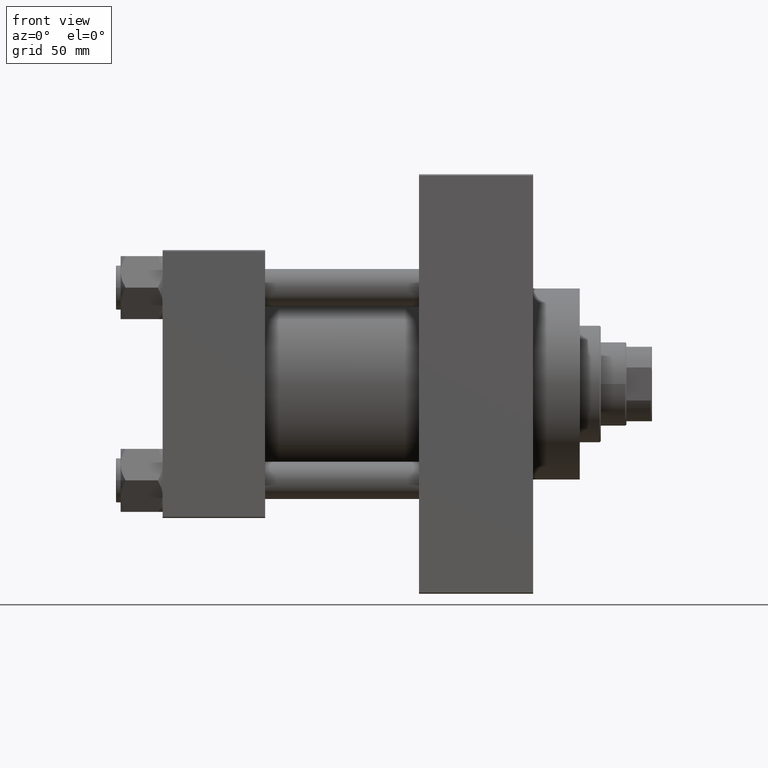
[diagram: clean part render]
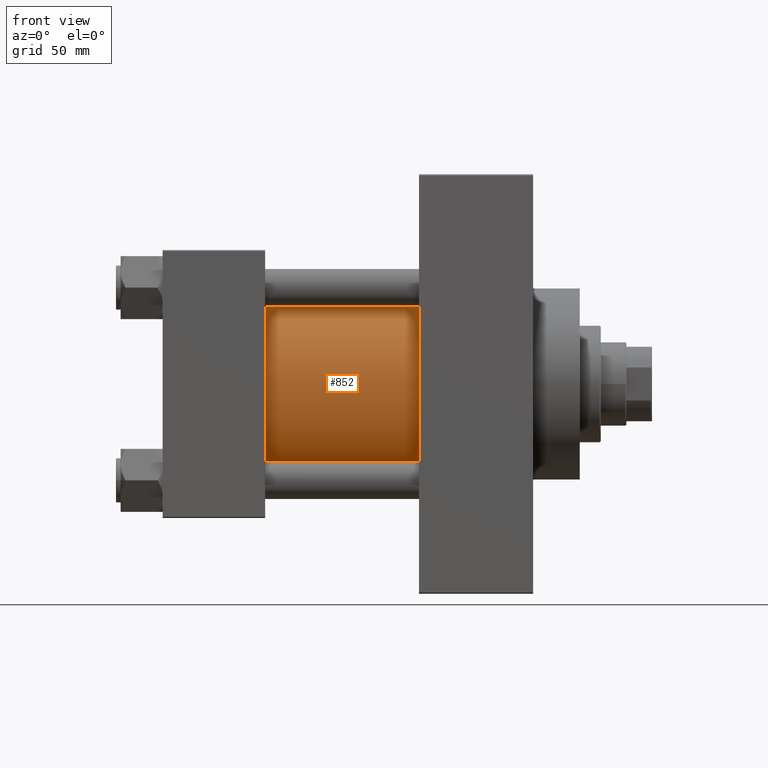
[diagram: same view with one face highlighted and labeled with its STEP entity id]
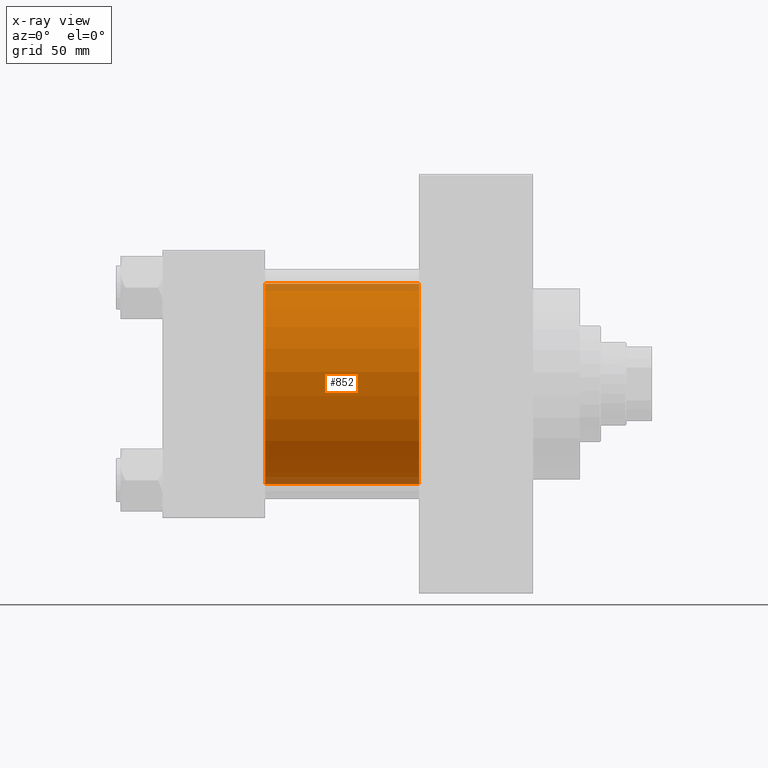
[diagram: x-ray of the same camera — body ghosted, the highlighted face saturated]
A machine part, front view. The second image highlights one B-rep face of the part: STEP entity #852.
The next image is the same camera in x-ray: the body ghosted, the highlighted face saturated — about 7% of this face is hidden behind the body in this view.
In plain terms, the highlighted cylindrical surface (partial cylindrical patch) has radius 43 mm, axis along (-1, -0, -0).
Its self-contained STEP definition (entity closure, byte-faithful):
#148 = AXIS2_PLACEMENT_3D ( 'NONE', #35989, #21538, #44173 ) ;
#852 = ADVANCED_FACE ( 'NONE', ( #12495 ), #2110, .T. ) ;
#1440 = VECTOR ( 'NONE', #12860, 1000.000000000000000 ) ;
#2110 = CYLINDRICAL_SURFACE ( 'NONE', #10199, 43.00000000000000000 ) ;
#2635 = ORIENTED_EDGE ( 'NONE', *, *, #43246, .F. ) ;
#3318 = CARTESIAN_POINT ( 'NONE',  ( 110.0000000000000000, -2.602085213965210642E-15, 0.000000000000000000 ) ) ;
#3375 = VERTEX_POINT ( 'NONE', #34888 ) ;
#5607 = EDGE_CURVE ( 'NONE', #41357, #13181, #21123, .T. ) ;
#7878 = DIRECTION ( 'NONE',  ( 0.000000000000000000, 0.000000000000000000, -1.000000000000000000 ) ) ;
#10199 = AXIS2_PLACEMENT_3D ( 'NONE', #31752, #28606, #24293 ) ;
#11266 = DIRECTION ( 'NONE',  ( 1.000000000000000000, 0.000000000000000000, 0.000000000000000000 ) ) ;
#12495 = FACE_OUTER_BOUND ( 'NONE', #28187, .T. ) ;
#12516 = CARTESIAN_POINT ( 'NONE',  ( 44.00000000000000000, 2.663896022368408223E-15, -43.00000000000000000 ) ) ;
#12860 = DIRECTION ( 'NONE',  ( -1.000000000000000000, -0.000000000000000000, -0.000000000000000000 ) ) ;
#13181 = VERTEX_POINT ( 'NONE', #17133 ) ;
#17133 = CARTESIAN_POINT ( 'NONE',  ( 44.00000000000000000, -2.602085213965210642E-15, 43.00000000000000000 ) ) ;
#19209 = ORIENTED_EDGE ( 'NONE', *, *, #28656, .F. ) ;
#20820 = LINE ( 'NONE', #32125, #1440 ) ;
#21123 = LINE ( 'NONE', #35807, #33338 ) ;
#21538 = DIRECTION ( 'NONE',  ( 1.000000000000000000, -0.000000000000000000, 0.000000000000000000 ) ) ;
#24117 = ORIENTED_EDGE ( 'NONE', *, *, #5607, .T. ) ;
#24293 = DIRECTION ( 'NONE',  ( 0.000000000000000000, 0.000000000000000000, 1.000000000000000000 ) ) ;
#28187 = EDGE_LOOP ( 'NONE', ( #19209, #2635, #24117, #39594 ) ) ;
#28606 = DIRECTION ( 'NONE',  ( -1.000000000000000000, -0.000000000000000000, -0.000000000000000000 ) ) ;
#28656 = EDGE_CURVE ( 'NONE', #3375, #47139, #20820, .T. ) ;
#31735 = CIRCLE ( 'NONE', #37913, 43.00000000000000000 ) ;
#31752 = CARTESIAN_POINT ( 'NONE',  ( 110.0000000000000000, -2.602085213965210642E-15, 0.000000000000000000 ) ) ;
#32125 = CARTESIAN_POINT ( 'NONE',  ( 110.0000000000000000, 2.663896022368408223E-15, -43.00000000000000000 ) ) ;
#33338 = VECTOR ( 'NONE', #36050, 1000.000000000000000 ) ;
#34888 = CARTESIAN_POINT ( 'NONE',  ( 110.0000000000000000, 2.663896022368408223E-15, -43.00000000000000000 ) ) ;
#35807 = CARTESIAN_POINT ( 'NONE',  ( 110.0000000000000000, -2.602085213965210642E-15, 43.00000000000000000 ) ) ;
#35989 = CARTESIAN_POINT ( 'NONE',  ( 44.00000000000000000, -2.602085213965210642E-15, 0.000000000000000000 ) ) ;
#36050 = DIRECTION ( 'NONE',  ( -1.000000000000000000, -0.000000000000000000, -0.000000000000000000 ) ) ;
#37913 = AXIS2_PLACEMENT_3D ( 'NONE', #3318, #11266, #7878 ) ;
#38609 = EDGE_CURVE ( 'NONE', #13181, #47139, #41702, .T. ) ;
#39594 = ORIENTED_EDGE ( 'NONE', *, *, #38609, .T. ) ;
#41357 = VERTEX_POINT ( 'NONE', #42527 ) ;
#41702 = CIRCLE ( 'NONE', #148, 43.00000000000000000 ) ;
#42527 = CARTESIAN_POINT ( 'NONE',  ( 110.0000000000000000, -2.602085213965210642E-15, 43.00000000000000000 ) ) ;
#43246 = EDGE_CURVE ( 'NONE', #41357, #3375, #31735, .T. ) ;
#44173 = DIRECTION ( 'NONE',  ( 0.000000000000000000, 0.000000000000000000, 1.000000000000000000 ) ) ;
#47139 = VERTEX_POINT ( 'NONE', #12516 ) ;